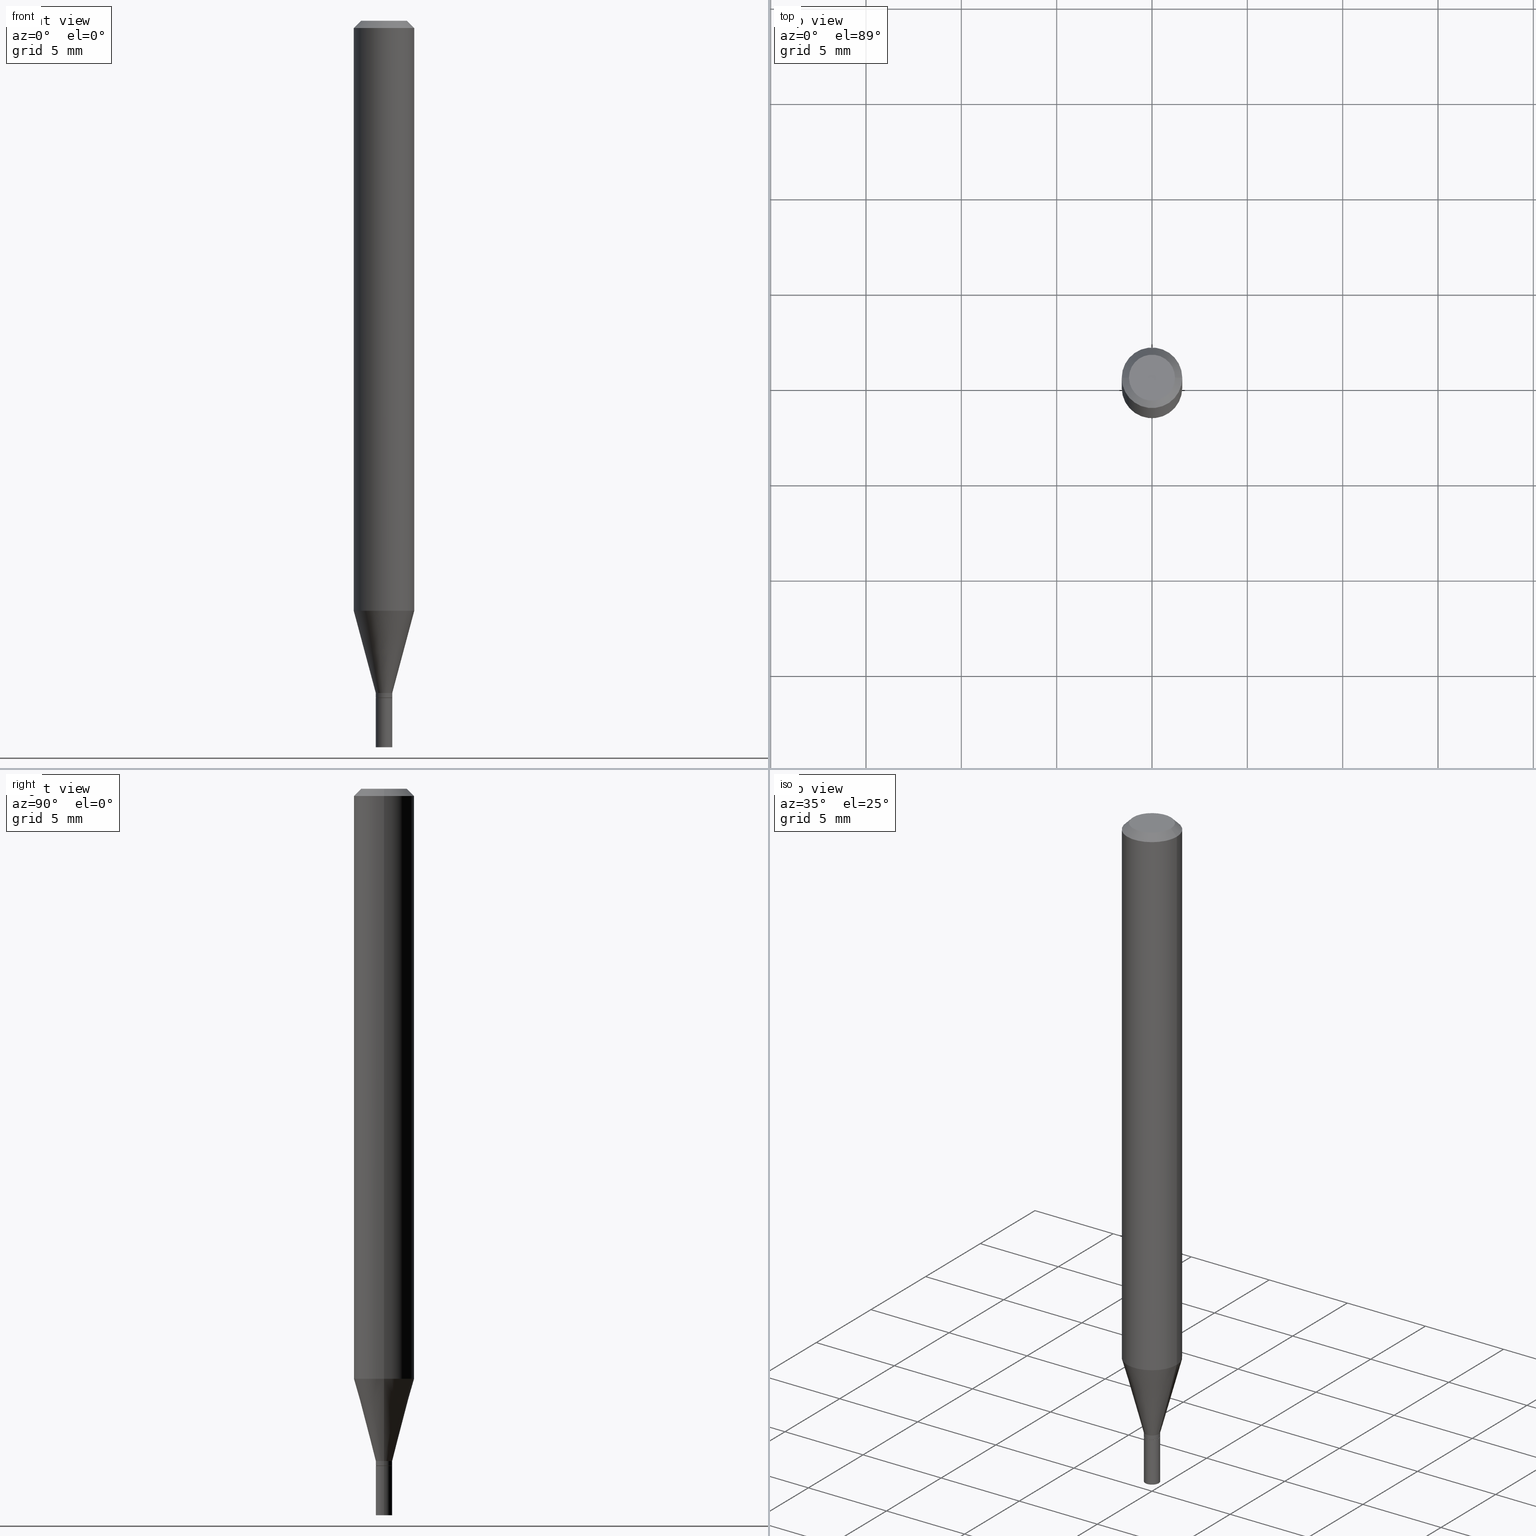
[diagram: canonical four-view strip — front | top / right | iso, engineering-drawing reading convention]
A machine part, canonical four-view strip (front | top / right | iso — engineering-drawing reading convention). The complete STEP part file that produces these views, byte-faithful:
ISO-10303-21;
HEADER;
FILE_DESCRIPTION (( 'STEP AP203' ),
    '1' );
FILE_NAME ('01185.STEP',
    '2024-03-19T23:46:55',
    ( '' ),
    ( '' ),
    'SwSTEP 2.0',
    'SolidWorks 2023',
    '' );
FILE_SCHEMA (( 'CONFIG_CONTROL_DESIGN' ));
ENDSEC;

DATA;
#1 = CARTESIAN_POINT ( 'NONE',  ( -0.01699999999999992142, -4.267294085031657797E-15, -1.388000000000000123 ) ) ;
#2 = CIRCLE ( 'NONE', #345, 0.01700000000000000122 ) ;
#3 = EDGE_CURVE ( 'NONE', #164, #212, #240, .T. ) ;
#4 = COORDINATED_UNIVERSAL_TIME_OFFSET ( 5, 0, .BEHIND. ) ;
#5 = DIRECTION ( 'NONE',  ( -2.445468806185136597E-29, 3.491481338843145583E-15, 1.000000000000000000 ) ) ;
#6 = COORDINATED_UNIVERSAL_TIME_OFFSET ( 5, 0, .BEHIND. ) ;
#7 = CARTESIAN_POINT ( 'NONE',  ( 0.01700000000000000122, -5.355932373785385153E-15, -1.500000000000000222 ) ) ;
#8 = PERSON_AND_ORGANIZATION_ROLE ( 'design_supplier' ) ;
#9 = DIRECTION ( 'NONE',  ( 1.000000000000000000, -6.982962677686265922E-15, 4.876176775795935793E-29 ) ) ;
#10 = CARTESIAN_POINT ( 'NONE',  ( 3.316907271900976096E-16, 0.04749999999999999362, -4.273281759770383169E-16 ) ) ;
#11 = APPLICATION_CONTEXT ( 'configuration controlled 3d designs of mechanical parts and assemblies' ) ;
#12 = CYLINDRICAL_SURFACE ( 'NONE', #404, 0.01700000000000000122 ) ;
#13 = ORIENTED_EDGE ( 'NONE', *, *, #336, .T. ) ;
#14 = DIRECTION ( 'NONE',  ( -2.445468806185136597E-29, 3.491481338843145583E-15, 1.000000000000000000 ) ) ;
#15 = EDGE_LOOP ( 'NONE', ( #101, #312, #244, #458 ) ) ;
#16 = EDGE_CURVE ( 'NONE', #374, #454, #460, .T. ) ;
#17 = CONICAL_SURFACE ( 'NONE', #364, 0.01650000000000000078, 0.7853981633974718157 ) ;
#18 = EDGE_CURVE ( 'NONE', #454, #374, #49, .T. ) ;
#19 = CIRCLE ( 'NONE', #50, 0.01650000000000000078 ) ;
#20 = CARTESIAN_POINT ( 'NONE',  ( 3.418765391046821599E-29, -4.881090911702718827E-15, -1.398000000000000131 ) ) ;
#21 = EDGE_LOOP ( 'NONE', ( #146, #314 ) ) ;
#22 = DIRECTION ( 'NONE',  ( -2.445468806185136597E-29, 3.491481338843145583E-15, 1.000000000000000000 ) ) ;
#23 = EDGE_LOOP ( 'NONE', ( #73, #410, #174, #103 ) ) ;
#24 = ADVANCED_FACE ( 'NONE', ( #432 ), #110, .F. ) ;
#25 = AXIS2_PLACEMENT_3D ( 'NONE', #443, #362, #292 ) ;
#26 = FACE_OUTER_BOUND ( 'NONE', #402, .T. ) ;
#27 = VECTOR ( 'NONE', #295, 39.37007874015747433 ) ;
#28 = CARTESIAN_POINT ( 'NONE',  ( 1.278896122067429216E-44, -1.825924719719875646E-30, -5.229656247639779395E-16 ) ) ;
#29 = CARTESIAN_POINT ( 'NONE',  ( 0.000000000000000000, 0.000000000000000000, 0.000000000000000000 ) ) ;
#30 = ORIENTED_EDGE ( 'NONE', *, *, #210, .T. ) ;
#31 = LINE ( 'NONE', #64, #461 ) ;
#32 = ORIENTED_EDGE ( 'NONE', *, *, #63, .T. ) ;
#33 = EDGE_CURVE ( 'NONE', #55, #164, #359, .T. ) ;
#34 = CARTESIAN_POINT ( 'NONE',  ( 3.394310702984970054E-29, -4.846176098314285600E-15, -1.388000000000000123 ) ) ;
#35 = DIRECTION ( 'NONE',  ( 1.000000000000000000, -6.982962677686267499E-15, 4.852736867747366768E-29 ) ) ;
#36 = VECTOR ( 'NONE', #337, 39.37007874015748143 ) ;
#37 = PERSON_AND_ORGANIZATION_ROLE ( 'creator' ) ;
#38 = VERTEX_POINT ( 'NONE', #123 ) ;
#39 = PERSON_AND_ORGANIZATION ( #52, #331 ) ;
#40 = CARTESIAN_POINT ( 'NONE',  ( 3.418765391046821599E-29, -4.881090911702718827E-15, -1.398000000000000131 ) ) ;
#41 = FACE_OUTER_BOUND ( 'NONE', #23, .T. ) ;
#42 = ADVANCED_FACE ( 'NONE', ( #288 ), #78, .F. ) ;
#43 = COORDINATED_UNIVERSAL_TIME_OFFSET ( 5, 0, .BEHIND. ) ;
#44 = CARTESIAN_POINT ( 'NONE',  ( 0.01700000000000000122, -1.187103655206665568E-16, 8.289500518853091759E-31 ) ) ;
#45 = DATE_TIME_ROLE ( 'creation_date' ) ;
#46 = CARTESIAN_POINT ( 'NONE',  ( -0.01650000000000000078, -4.761202133128191386E-15, -1.398000000000000131 ) ) ;
#47 = EDGE_CURVE ( 'NONE', #454, #166, #356, .T. ) ;
#48 = DIRECTION ( 'NONE',  ( -1.000000000000000000, 6.982962677686266711E-15, 0.000000000000000000 ) ) ;
#49 = CIRCLE ( 'NONE', #179, 0.04749999999999999362 ) ;
#50 = AXIS2_PLACEMENT_3D ( 'NONE', #20, #198, #161 ) ;
#51 = CARTESIAN_POINT ( 'NONE',  ( 0.01700000000000000122, -4.999801277223385014E-15, -1.398000000000000131 ) ) ;
#52 = PERSON ( 'UNSPECIFIED', 'UNSPECIFIED', 'UNSPECIFIED', ('UNSPECIFIED'), ('UNSPECIFIED'), ('UNSPECIFIED') ) ;
#53 = ORIENTED_EDGE ( 'NONE', *, *, #18, .F. ) ;
#54 = CARTESIAN_POINT ( 'NONE',  ( -0.06250000000000000000, 3.840629472727444916E-16, -0.01499999999999999944 ) ) ;
#55 = VERTEX_POINT ( 'NONE', #46 ) ;
#56 = EDGE_CURVE ( 'NONE', #108, #277, #414, .T. ) ;
#57 = CARTESIAN_POINT ( 'NONE',  ( -0.01699999999999992142, -4.725383833235069250E-15, -1.388000000000000123 ) ) ;
#58 = CIRCLE ( 'NONE', #278, 0.01700000000000000122 ) ;
#59 = CC_DESIGN_APPROVAL ( #370, ( #340 ) ) ;
#60 = DIRECTION ( 'NONE',  ( 1.000000000000000000, -6.982962677686265922E-15, 4.876176775795935793E-29 ) ) ;
#61 = ADVANCED_FACE ( 'NONE', ( #41 ), #17, .T. ) ;
#62 = ORIENTED_EDGE ( 'NONE', *, *, #56, .T. ) ;
#63 = EDGE_CURVE ( 'NONE', #131, #277, #252, .T. ) ;
#64 = CARTESIAN_POINT ( 'NONE',  ( -0.06250000000000000000, 4.440892098500626162E-16, -3.074334431409316114E-30 ) ) ;
#65 = ORIENTED_EDGE ( 'NONE', *, *, #162, .T. ) ;
#66 = AXIS2_PLACEMENT_3D ( 'NONE', #215, #429, #138 ) ;
#67 = DIRECTION ( 'NONE',  ( -2.445468806185136597E-29, 3.491481338843145583E-15, 1.000000000000000000 ) ) ;
#68 = ORIENTED_EDGE ( 'NONE', *, *, #265, .F. ) ;
#69 = LINE ( 'NONE', #242, #307 ) ;
#70 = EDGE_LOOP ( 'NONE', ( #269, #209 ) ) ;
#71 = CC_DESIGN_DATE_AND_TIME_ASSIGNMENT ( #355, #190, ( #316 ) ) ;
#72 = DIRECTION ( 'NONE',  ( -2.445468806185136597E-29, 3.491481338843145583E-15, 1.000000000000000000 ) ) ;
#73 = ORIENTED_EDGE ( 'NONE', *, *, #33, .F. ) ;
#74 = CARTESIAN_POINT ( 'NONE',  ( 1.187103655207007243E-16, 0.01699999999999511971, -1.398000000000000131 ) ) ;
#75 = AXIS2_PLACEMENT_3D ( 'NONE', #449, #448, #301 ) ;
#76 = SECURITY_CLASSIFICATION_LEVEL ( 'unclassified' ) ;
#77 = DIRECTION ( 'NONE',  ( -1.000000000000000000, 6.982962677686266711E-15, 0.000000000000000000 ) ) ;
#78 = PLANE ( 'NONE',  #167 ) ;
#79 = APPROVAL ( #221, 'UNSPECIFIED' ) ;
#80 = FACE_OUTER_BOUND ( 'NONE', #384, .T. ) ;
#81 = AXIS2_PLACEMENT_3D ( 'NONE', #115, #117, #226 ) ;
#82 = LOCAL_TIME ( 19, 46, 55.00000000000000000, #6 ) ;
#83 = SHAPE_DEFINITION_REPRESENTATION ( #412, #427 ) ;
#84 = DIRECTION ( 'NONE',  ( 1.000000000000000000, -6.982962677686266711E-15, 4.876176775795935793E-29 ) ) ;
#85 = EDGE_CURVE ( 'NONE', #131, #170, #58, .T. ) ;
#86 = FACE_OUTER_BOUND ( 'NONE', #15, .T. ) ;
#87 = DIRECTION ( 'NONE',  ( -0.7071067811865598962, 2.468850131082386434E-15, -0.7071067811865351382 ) ) ;
#88 = ORIENTED_EDGE ( 'NONE', *, *, #430, .F. ) ;
#89 = AXIS2_PLACEMENT_3D ( 'NONE', #28, #378, #35 ) ;
#90 = AXIS2_PLACEMENT_3D ( 'NONE', #444, #261, #401 ) ;
#91 = LINE ( 'NONE', #54, #382 ) ;
#92 = FACE_OUTER_BOUND ( 'NONE', #21, .T. ) ;
#93 = DESIGN_CONTEXT ( 'detailed design', #11, 'design' ) ;
#94 = DIRECTION ( 'NONE',  ( -2.445468806185136597E-29, 3.491481338843145583E-15, 1.000000000000000000 ) ) ;
#95 = CIRCLE ( 'NONE', #75, 0.06250000000000000000 ) ;
#96 = APPROVAL_PERSON_ORGANIZATION ( #116, #297, #466 ) ;
#97 = DIRECTION ( 'NONE',  ( 1.000000000000000000, -6.982962677686243834E-15, 0.000000000000000000 ) ) ;
#98 = PRODUCT ( '01185', '01185', '', ( #100 ) ) ;
#99 = CC_DESIGN_PERSON_AND_ORGANIZATION_ASSIGNMENT ( #284, #319, ( #340 ) ) ;
#100 = MECHANICAL_CONTEXT ( 'NONE', #199, 'mechanical' ) ;
#101 = ORIENTED_EDGE ( 'NONE', *, *, #85, .T. ) ;
#102 = FACE_OUTER_BOUND ( 'NONE', #353, .T. ) ;
#103 = ORIENTED_EDGE ( 'NONE', *, *, #3, .F. ) ;
#104 = LINE ( 'NONE', #180, #365 ) ;
#105 = CONICAL_SURFACE ( 'NONE', #434, 0.06250000000000000000, 0.7853981633974658205 ) ;
#106 = ORIENTED_EDGE ( 'NONE', *, *, #47, .T. ) ;
#107 = ADVANCED_FACE ( 'NONE', ( #193 ), #433, .T. ) ;
#108 = VERTEX_POINT ( 'NONE', #154 ) ;
#109 = FACE_OUTER_BOUND ( 'NONE', #197, .T. ) ;
#110 = PLANE ( 'NONE',  #350 ) ;
#111 = ADVANCED_FACE ( 'NONE', ( #438 ), #395, .T. ) ;
#112 = APPROVAL_DATE_TIME ( #249, #297 ) ;
#113 = CARTESIAN_POINT ( 'NONE',  ( 0.000000000000000000, 0.000000000000000000, 0.000000000000000000 ) ) ;
#114 = PERSON_AND_ORGANIZATION_ROLE ( 'classification_officer' ) ;
#115 = CARTESIAN_POINT ( 'NONE',  ( 3.418765391046821599E-29, -4.881090911702718827E-15, -1.398000000000000131 ) ) ;
#116 = PERSON_AND_ORGANIZATION ( #52, #331 ) ;
#117 = DIRECTION ( 'NONE',  ( -2.445468806185136597E-29, 3.491481338843145583E-15, 1.000000000000000000 ) ) ;
#118 = PERSON_AND_ORGANIZATION ( #52, #331 ) ;
#119 = FACE_OUTER_BOUND ( 'NONE', #281, .T. ) ;
#120 = PRODUCT_RELATED_PRODUCT_CATEGORY ( 'detail', '', ( #98 ) ) ;
#121 = AXIS2_PLACEMENT_3D ( 'NONE', #330, #399, #436 ) ;
#122 = CC_DESIGN_APPROVAL ( #297, ( #316 ) ) ;
#123 = CARTESIAN_POINT ( 'NONE',  ( -0.06250000000000000000, -1.708743673530416389E-15, -0.01499999999999999944 ) ) ;
#124 = DIRECTION ( 'NONE',  ( 1.000000000000000000, -6.982962677686270655E-15, 0.000000000000000000 ) ) ;
#125 = ORIENTED_EDGE ( 'NONE', *, *, #216, .T. ) ;
#126 = CARTESIAN_POINT ( 'NONE',  ( 0.01699999999999992142, -4.964886463834951787E-15, -1.388000000000000123 ) ) ;
#127 = ORIENTED_EDGE ( 'NONE', *, *, #85, .F. ) ;
#128 = AXIS2_PLACEMENT_3D ( 'NONE', #34, #379, #422 ) ;
#129 = CC_DESIGN_PERSON_AND_ORGANIZATION_ASSIGNMENT ( #328, #114, ( #316 ) ) ;
#130 = DIRECTION ( 'NONE',  ( -2.445468806185136597E-29, 3.491481338843145583E-15, 1.000000000000000000 ) ) ;
#131 = VERTEX_POINT ( 'NONE', #7 ) ;
#132 = PLANE ( 'NONE',  #375 ) ;
#133 = ORIENTED_EDGE ( 'NONE', *, *, #423, .F. ) ;
#134 = CYLINDRICAL_SURFACE ( 'NONE', #234, 0.01699999999999992142 ) ;
#135 = ORIENTED_EDGE ( 'NONE', *, *, #139, .T. ) ;
#136 = CC_DESIGN_APPROVAL ( #79, ( #189 ) ) ;
#137 = DIRECTION ( 'NONE',  ( -2.445468806185136597E-29, 3.491481338843145583E-15, 1.000000000000000000 ) ) ;
#138 = DIRECTION ( 'NONE',  ( 1.000000000000000000, -6.982962677686249356E-15, 0.000000000000000000 ) ) ;
#139 = EDGE_CURVE ( 'NONE', #38, #166, #388, .T. ) ;
#140 = ORIENTED_EDGE ( 'NONE', *, *, #430, .T. ) ;
#141 = ADVANCED_FACE ( 'NONE', ( #80 ), #150, .T. ) ;
#142 = PERSON_AND_ORGANIZATION ( #52, #331 ) ;
#143 = EDGE_LOOP ( 'NONE', ( #274, #424, #372, #135 ) ) ;
#144 = CARTESIAN_POINT ( 'NONE',  ( 0.04749999999999999362, -4.035134999187587991E-16, -5.229656247639753758E-16 ) ) ;
#145 = APPROVAL_PERSON_ORGANIZATION ( #118, #370, #185 ) ;
#146 = ORIENTED_EDGE ( 'NONE', *, *, #289, .F. ) ;
#147 = CYLINDRICAL_SURFACE ( 'NONE', #188, 0.06250000000000000000 ) ;
#148 = VERTEX_POINT ( 'NONE', #1 ) ;
#149 = APPROVAL_DATE_TIME ( #437, #79 ) ;
#150 = CYLINDRICAL_SURFACE ( 'NONE', #453, 0.06250000000000000000 ) ;
#151 = APPROVAL_STATUS ( 'not_yet_approved' ) ;
#152 = CARTESIAN_POINT ( 'NONE',  ( 0.01699999999999992142, -4.964886463834951787E-15, -1.388000000000000123 ) ) ;
#153 = CONICAL_SURFACE ( 'NONE', #263, 0.01699999999999992142, 0.2617993877991500740 ) ;
#154 = CARTESIAN_POINT ( 'NONE',  ( -0.01700000000000000122, -4.938364194904501363E-15, -1.398000000000000131 ) ) ;
#155 = ADVANCED_FACE ( 'NONE', ( #86 ), #156, .T. ) ;
#156 = CYLINDRICAL_SURFACE ( 'NONE', #25, 0.01700000000000000122 ) ;
#157 = DIRECTION ( 'NONE',  ( -1.000000000000000000, 6.982962677686265922E-15, -4.876176775795935793E-29 ) ) ;
#158 = VECTOR ( 'NONE', #187, 39.37007874015748143 ) ;
#159 = VECTOR ( 'NONE', #332, 39.37007874015747433 ) ;
#160 = CC_DESIGN_SECURITY_CLASSIFICATION ( #316, ( #340 ) ) ;
#161 = DIRECTION ( 'NONE',  ( 1.000000000000000000, -6.982962677686243834E-15, 0.000000000000000000 ) ) ;
#162 = EDGE_CURVE ( 'NONE', #212, #214, #186, .T. ) ;
#163 = CARTESIAN_POINT ( 'NONE',  ( 0.000000000000000000, 0.000000000000000000, 0.000000000000000000 ) ) ;
#164 = VERTEX_POINT ( 'NONE', #439 ) ;
#165 = DIRECTION ( 'NONE',  ( 1.000000000000000000, -6.982962677686267499E-15, 4.876176775795935793E-29 ) ) ;
#166 = VERTEX_POINT ( 'NONE', #391 ) ;
#167 = AXIS2_PLACEMENT_3D ( 'NONE', #290, #322, #9 ) ;
#168 = AXIS2_PLACEMENT_3D ( 'NONE', #29, #457, #304 ) ;
#169 = DIRECTION ( 'NONE',  ( 1.000000000000000000, -6.982962677686266711E-15, 4.876176775795936353E-29 ) ) ;
#170 = VERTEX_POINT ( 'NONE', #184 ) ;
#171 = LINE ( 'NONE', #57, #159 ) ;
#172 = ADVANCED_FACE ( 'NONE', ( #119 ), #105, .T. ) ;
#173 = EDGE_LOOP ( 'NONE', ( #127, #206 ) ) ;
#174 = ORIENTED_EDGE ( 'NONE', *, *, #390, .T. ) ;
#175 = PERSON_AND_ORGANIZATION ( #52, #331 ) ;
#176 = EDGE_LOOP ( 'NONE', ( #413, #62 ) ) ;
#177 =( NAMED_UNIT ( * ) SI_UNIT ( $, .STERADIAN. ) SOLID_ANGLE_UNIT ( ) );
#178 = ORIENTED_EDGE ( 'NONE', *, *, #245, .T. ) ;
#179 = AXIS2_PLACEMENT_3D ( 'NONE', #318, #463, #276 ) ;
#180 = CARTESIAN_POINT ( 'NONE',  ( -0.01699999999999992142, 1.207922650792164733E-16, -8.362189653433301602E-31 ) ) ;
#181 = CIRCLE ( 'NONE', #128, 0.01699999999999992142 ) ;
#182 = ORIENTED_EDGE ( 'NONE', *, *, #423, .T. ) ;
#183 = EDGE_CURVE ( 'NONE', #214, #346, #218, .T. ) ;
#184 = CARTESIAN_POINT ( 'NONE',  ( -0.01700000000000000122, -4.938364194904501363E-15, -1.500000000000000222 ) ) ;
#185 = APPROVAL_ROLE ( '' ) ;
#186 = LINE ( 'NONE', #250, #315 ) ;
#187 = DIRECTION ( 'NONE',  ( -0.7071067811865642261, 7.493145998870414114E-15, 0.7071067811865309194 ) ) ;
#188 = AXIS2_PLACEMENT_3D ( 'NONE', #282, #137, #347 ) ;
#189 = PRODUCT_DEFINITION ( 'UNKNOWN', '', #340, #93 ) ;
#190 = DATE_TIME_ROLE ( 'classification_date' ) ;
#191 = DIRECTION ( 'NONE',  ( -2.445468806185136877E-29, 3.491481338843145188E-15, 1.000000000000000000 ) ) ;
#192 = APPROVAL_STATUS ( 'not_yet_approved' ) ;
#193 = FACE_OUTER_BOUND ( 'NONE', #339, .T. ) ;
#194 = CARTESIAN_POINT ( 'NONE',  ( 0.000000000000000000, 0.000000000000000000, 0.000000000000000000 ) ) ;
#195 = AXIS2_PLACEMENT_3D ( 'NONE', #10, #232, #260 ) ;
#196 = FACE_OUTER_BOUND ( 'NONE', #267, .T. ) ;
#197 = EDGE_LOOP ( 'NONE', ( #237, #178, #305, #380 ) ) ;
#198 = DIRECTION ( 'NONE',  ( -2.445468806185136597E-29, 3.491481338843145583E-15, 1.000000000000000000 ) ) ;
#199 = APPLICATION_CONTEXT ( 'configuration controlled 3d designs of mechanical parts and assemblies' ) ;
#200 = PLANE ( 'NONE',  #195 ) ;
#201 = ORIENTED_EDGE ( 'NONE', *, *, #329, .F. ) ;
#202 = VECTOR ( 'NONE', #191, 39.37007874015748143 ) ;
#203 = CIRCLE ( 'NONE', #447, 0.06250000000000000000 ) ;
#204 = EDGE_CURVE ( 'NONE', #170, #131, #229, .T. ) ;
#205 = CARTESIAN_POINT ( 'NONE',  ( -0.04749999999999999362, 3.578768372314202124E-16, -5.229656247639803061E-16 ) ) ;
#206 = ORIENTED_EDGE ( 'NONE', *, *, #204, .F. ) ;
#207 = DIRECTION ( 'NONE',  ( -2.445468806185136877E-29, 3.491481338843145188E-15, 1.000000000000000000 ) ) ;
#208 = PERSON_AND_ORGANIZATION_ROLE ( 'design_owner' ) ;
#209 = ORIENTED_EDGE ( 'NONE', *, *, #18, .T. ) ;
#210 = EDGE_CURVE ( 'NONE', #452, #346, #203, .T. ) ;
#211 = VECTOR ( 'NONE', #236, 39.37007874015748143 ) ;
#212 = VERTEX_POINT ( 'NONE', #445 ) ;
#213 =( NAMED_UNIT ( * ) PLANE_ANGLE_UNIT ( ) SI_UNIT ( $, .RADIAN. ) );
#214 = VERTEX_POINT ( 'NONE', #126 ) ;
#215 = CARTESIAN_POINT ( 'NONE',  ( 3.417542656643729358E-29, -4.879345171033297323E-15, -1.397500000000000409 ) ) ;
#216 = EDGE_CURVE ( 'NONE', #346, #166, #369, .T. ) ;
#217 = DIRECTION ( 'NONE',  ( 2.438088387897960049E-29, -3.491481338843145188E-15, -1.000000000000000000 ) ) ;
#218 = LINE ( 'NONE', #152, #27 ) ;
#219 = CARTESIAN_POINT ( 'NONE',  ( 3.418765391046821599E-29, -4.881090911702718827E-15, -1.398000000000000131 ) ) ;
#220 = ADVANCED_FACE ( 'NONE', ( #333 ), #134, .T. ) ;
#221 = APPROVAL_STATUS ( 'not_yet_approved' ) ;
#222 = MANIFOLD_SOLID_BREP ( 'Body-Move/Copy2[1]', #425 ) ;
#223 = AXIS2_PLACEMENT_3D ( 'NONE', #40, #325, #354 ) ;
#224 = DIRECTION ( 'NONE',  ( -2.445468806185136597E-29, 3.491481338843145583E-15, 1.000000000000000000 ) ) ;
#225 = AXIS2_PLACEMENT_3D ( 'NONE', #406, #415, #48 ) ;
#226 = DIRECTION ( 'NONE',  ( 1.000000000000000000, -6.982962677686243834E-15, 0.000000000000000000 ) ) ;
#227 = DIRECTION ( 'NONE',  ( -2.445468806185136877E-29, 3.491481338843145188E-15, 1.000000000000000000 ) ) ;
#228 = DIRECTION ( 'NONE',  ( -2.445468806185136597E-29, 3.491481338843145583E-15, 1.000000000000000000 ) ) ;
#229 = CIRCLE ( 'NONE', #90, 0.01700000000000000122 ) ;
#230 = LOCAL_TIME ( 19, 46, 55.00000000000000000, #291 ) ;
#231 = LINE ( 'NONE', #268, #36 ) ;
#232 = DIRECTION ( 'NONE',  ( 2.438088387897960049E-29, -3.491481338843145188E-15, -1.000000000000000000 ) ) ;
#233 = DIRECTION ( 'NONE',  ( -2.438088387897960049E-29, 3.491481338843145188E-15, 1.000000000000000000 ) ) ;
#234 = AXIS2_PLACEMENT_3D ( 'NONE', #194, #94, #169 ) ;
#235 = CIRCLE ( 'NONE', #248, 0.01650000000000000078 ) ;
#236 = DIRECTION ( 'NONE',  ( -2.445468806185136877E-29, 3.491481338843145188E-15, 1.000000000000000000 ) ) ;
#237 = ORIENTED_EDGE ( 'NONE', *, *, #408, .T. ) ;
#238 = CARTESIAN_POINT ( 'NONE',  ( 3.394310702984970054E-29, -4.846176098314285600E-15, -1.388000000000000123 ) ) ;
#239 = ORIENTED_EDGE ( 'NONE', *, *, #390, .F. ) ;
#240 = CIRCLE ( 'NONE', #66, 0.01699999999999992489 ) ;
#241 = CONICAL_SURFACE ( 'NONE', #324, 0.01699999999999992142, 0.2617993877991500740 ) ;
#242 = CARTESIAN_POINT ( 'NONE',  ( 0.01650000000000000078, -4.996309795884541218E-15, -1.398000000000000131 ) ) ;
#243 = ORIENTED_EDGE ( 'NONE', *, *, #204, .T. ) ;
#244 = ORIENTED_EDGE ( 'NONE', *, *, #400, .F. ) ;
#245 = EDGE_CURVE ( 'NONE', #148, #452, #171, .T. ) ;
#246 = PERSON_AND_ORGANIZATION ( #52, #331 ) ;
#247 = EDGE_LOOP ( 'NONE', ( #133, #386, #65, #88 ) ) ;
#248 = AXIS2_PLACEMENT_3D ( 'NONE', #367, #228, #97 ) ;
#249 = DATE_AND_TIME ( #326, #442 ) ;
#250 = CARTESIAN_POINT ( 'NONE',  ( 0.01699999999999992142, -1.187103655206659898E-16, 8.289500518853053223E-31 ) ) ;
#251 = CARTESIAN_POINT ( 'NONE',  ( 0.06250000000000000000, -4.811533449433679005E-16, -0.01499999999999999944 ) ) ;
#252 = LINE ( 'NONE', #44, #202 ) ;
#253 = CC_DESIGN_PERSON_AND_ORGANIZATION_ASSIGNMENT ( #175, #208, ( #98 ) ) ;
#254 = DATE_AND_TIME ( #441, #82 ) ;
#255 = VECTOR ( 'NONE', #393, 39.37007874015748143 ) ;
#256 = CARTESIAN_POINT ( 'NONE',  ( 3.668203209277705088E-31, -5.237222008264718399E-17, -0.01499999999999999944 ) ) ;
#257 = ADVANCED_FACE ( 'NONE', ( #298 ), #200, .F. ) ;
#258 = DIRECTION ( 'NONE',  ( 1.000000000000000000, -6.982962677686274599E-15, 0.000000000000000000 ) ) ;
#259 = ADVANCED_FACE ( 'NONE', ( #299 ), #293, .T. ) ;
#260 = DIRECTION ( 'NONE',  ( -1.000000000000000000, 6.982962677686265922E-15, -4.876176775795935793E-29 ) ) ;
#261 = DIRECTION ( 'NONE',  ( -2.445468806185136597E-29, 3.491481338843145583E-15, 1.000000000000000000 ) ) ;
#262 = ORIENTED_EDGE ( 'NONE', *, *, #289, .T. ) ;
#263 = AXIS2_PLACEMENT_3D ( 'NONE', #280, #275, #309 ) ;
#264 = CARTESIAN_POINT ( 'NONE',  ( 0.06250000000000000000, -4.689728714033702207E-15, -1.218191688255616301 ) ) ;
#265 = EDGE_CURVE ( 'NONE', #170, #108, #231, .T. ) ;
#266 = CARTESIAN_POINT ( 'NONE',  ( 2.979049773583118169E-29, -4.253293546678310537E-15, -1.218191688255616301 ) ) ;
#267 = EDGE_LOOP ( 'NONE', ( #68, #243, #32, #335 ) ) ;
#268 = CARTESIAN_POINT ( 'NONE',  ( -0.01700000000000000122, 1.207922650792170403E-16, -8.362189653433340137E-31 ) ) ;
#269 = ORIENTED_EDGE ( 'NONE', *, *, #16, .T. ) ;
#270 = CLOSED_SHELL ( 'NONE', ( #107, #111, #172, #141, #403, #405, #450, #259, #257, #361, #61, #220 ) ) ;
#271 =( GEOMETRIC_REPRESENTATION_CONTEXT ( 3 ) GLOBAL_UNCERTAINTY_ASSIGNED_CONTEXT ( ( #308 ) ) GLOBAL_UNIT_ASSIGNED_CONTEXT ( ( #431, #213, #177 ) ) REPRESENTATION_CONTEXT ( 'NONE', 'WORKASPACE' ) );
#272 = EDGE_CURVE ( 'NONE', #374, #38, #91, .T. ) ;
#273 = DIRECTION ( 'NONE',  ( -2.445468806185136597E-29, 3.491481338843145583E-15, 1.000000000000000000 ) ) ;
#274 = ORIENTED_EDGE ( 'NONE', *, *, #47, .F. ) ;
#275 = DIRECTION ( 'NONE',  ( -2.445468806185136597E-29, 3.491481338843145583E-15, 1.000000000000000000 ) ) ;
#276 = DIRECTION ( 'NONE',  ( 1.000000000000000000, -6.982962677686267499E-15, 4.852736867747366768E-29 ) ) ;
#277 = VERTEX_POINT ( 'NONE', #51 ) ;
#278 = AXIS2_PLACEMENT_3D ( 'NONE', #327, #465, #258 ) ;
#279 = LOCAL_TIME ( 19, 46, 55.00000000000000000, #4 ) ;
#280 = CARTESIAN_POINT ( 'NONE',  ( 3.394310702984970054E-29, -4.846176098314285600E-15, -1.388000000000000123 ) ) ;
#281 = EDGE_LOOP ( 'NONE', ( #53, #106, #310, #387 ) ) ;
#282 = CARTESIAN_POINT ( 'NONE',  ( 0.000000000000000000, 0.000000000000000000, 0.000000000000000000 ) ) ;
#283 = ORIENTED_EDGE ( 'NONE', *, *, #139, .F. ) ;
#284 = PERSON_AND_ORGANIZATION ( #52, #331 ) ;
#285 = DIRECTION ( 'NONE',  ( 1.000000000000000000, -6.982962677686243834E-15, 0.000000000000000000 ) ) ;
#286 = AXIS2_PLACEMENT_3D ( 'NONE', #341, #22, #451 ) ;
#287 = CALENDAR_DATE ( 2024, 19, 3 ) ;
#288 = FACE_OUTER_BOUND ( 'NONE', #173, .T. ) ;
#289 = EDGE_CURVE ( 'NONE', #348, #55, #235, .T. ) ;
#290 = CARTESIAN_POINT ( 'NONE',  ( 3.584916967085606921E-29, -5.356492647442320375E-15, -1.500000000000000222 ) ) ;
#291 = COORDINATED_UNIVERSAL_TIME_OFFSET ( 5, 0, .BEHIND. ) ;
#292 = DIRECTION ( 'NONE',  ( 1.000000000000000000, -6.982962677686267499E-15, 4.876176775795935793E-29 ) ) ;
#293 = CONICAL_SURFACE ( 'NONE', #225, 0.06250000000000000000, 0.7853981633974658205 ) ;
#294 = DIRECTION ( 'NONE',  ( -2.445468806185136597E-29, 3.491481338843145583E-15, 1.000000000000000000 ) ) ;
#295 = DIRECTION ( 'NONE',  ( 0.2588190451025213501, 1.565188264969621968E-15, 0.9659258262890682012 ) ) ;
#296 = CARTESIAN_POINT ( 'NONE',  ( 2.979049773583118169E-29, -4.253293546678310537E-15, -1.218191688255616301 ) ) ;
#297 = APPROVAL ( #192, 'UNSPECIFIED' ) ;
#298 = FACE_OUTER_BOUND ( 'NONE', #70, .T. ) ;
#299 = FACE_OUTER_BOUND ( 'NONE', #143, .T. ) ;
#300 = ORIENTED_EDGE ( 'NONE', *, *, #162, .F. ) ;
#301 = DIRECTION ( 'NONE',  ( 1.000000000000000000, -6.982962677686266711E-15, 0.000000000000000000 ) ) ;
#302 = ORIENTED_EDGE ( 'NONE', *, *, #183, .T. ) ;
#303 = EDGE_CURVE ( 'NONE', #55, #348, #19, .T. ) ;
#304 = DIRECTION ( 'NONE',  ( 1.000000000000000000, 0.000000000000000000, 0.000000000000000000 ) ) ;
#305 = ORIENTED_EDGE ( 'NONE', *, *, #336, .F. ) ;
#306 = ADVANCED_FACE ( 'NONE', ( #196 ), #12, .T. ) ;
#307 = VECTOR ( 'NONE', #383, 39.37007874015748143 ) ;
#308 = UNCERTAINTY_MEASURE_WITH_UNIT (LENGTH_MEASURE( 1.000000000000000082E-05 ), #431, 'distance_accuracy_value', 'NONE');
#309 = DIRECTION ( 'NONE',  ( 1.000000000000000000, -6.982962677686250933E-15, 0.000000000000000000 ) ) ;
#310 = ORIENTED_EDGE ( 'NONE', *, *, #329, .T. ) ;
#311 = APPLICATION_PROTOCOL_DEFINITION ( 'international standard', 'config_control_design', 1994, #11 ) ;
#312 = ORIENTED_EDGE ( 'NONE', *, *, #265, .T. ) ;
#313 = CARTESIAN_POINT ( 'NONE',  ( 3.394310702984970054E-29, -4.846176098314285600E-15, -1.388000000000000123 ) ) ;
#314 = ORIENTED_EDGE ( 'NONE', *, *, #303, .F. ) ;
#315 = VECTOR ( 'NONE', #227, 39.37007874015748143 ) ;
#316 = SECURITY_CLASSIFICATION ( '', '', #76 ) ;
#317 = LENGTH_MEASURE_WITH_UNIT ( LENGTH_MEASURE( 0.02539999999999999897 ), #385 );
#318 = CARTESIAN_POINT ( 'NONE',  ( 1.278896122067429216E-44, -1.825924719719875646E-30, -5.229656247639779395E-16 ) ) ;
#319 = PERSON_AND_ORGANIZATION_ROLE ( 'creator' ) ;
#320 = DIRECTION ( 'NONE',  ( 1.000000000000000000, -6.982962677686266711E-15, 0.000000000000000000 ) ) ;
#321 = APPROVAL_ROLE ( '' ) ;
#322 = DIRECTION ( 'NONE',  ( -2.438088387897960049E-29, 3.491481338843145188E-15, 1.000000000000000000 ) ) ;
#323 = CC_DESIGN_DATE_AND_TIME_ASSIGNMENT ( #254, #45, ( #189 ) ) ;
#324 = AXIS2_PLACEMENT_3D ( 'NONE', #238, #67, #462 ) ;
#325 = DIRECTION ( 'NONE',  ( -2.445468806185136597E-29, 3.491481338843145583E-15, 1.000000000000000000 ) ) ;
#326 = CALENDAR_DATE ( 2024, 19, 3 ) ;
#327 = CARTESIAN_POINT ( 'NONE',  ( 3.668203209277704895E-29, -5.237222008264718177E-15, -1.500000000000000222 ) ) ;
#328 = PERSON_AND_ORGANIZATION ( #52, #331 ) ;
#329 = EDGE_CURVE ( 'NONE', #166, #38, #95, .T. ) ;
#330 = CARTESIAN_POINT ( 'NONE',  ( 0.000000000000000000, 0.000000000000000000, 0.000000000000000000 ) ) ;
#331 = ORGANIZATION ( 'UNSPECIFIED', 'UNSPECIFIED', '' ) ;
#332 = DIRECTION ( 'NONE',  ( -0.2588190451025213501, 5.211531920934551042E-15, 0.9659258262890682012 ) ) ;
#333 = FACE_OUTER_BOUND ( 'NONE', #247, .T. ) ;
#334 = CARTESIAN_POINT ( 'NONE',  ( 0.06250000000000000000, -4.364351673553916694E-16, 3.047610484872459871E-30 ) ) ;
#335 = ORIENTED_EDGE ( 'NONE', *, *, #56, .F. ) ;
#336 = EDGE_CURVE ( 'NONE', #346, #452, #389, .T. ) ;
#337 = DIRECTION ( 'NONE',  ( -2.445468806185136877E-29, 3.491481338843145188E-15, 1.000000000000000000 ) ) ;
#338 = AXIS2_PLACEMENT_3D ( 'NONE', #394, #294, #320 ) ;
#339 = EDGE_LOOP ( 'NONE', ( #456, #182, #344, #300 ) ) ;
#340 = PRODUCT_DEFINITION_FORMATION_WITH_SPECIFIED_SOURCE ( 'ANY', '', #98, .NOT_KNOWN. ) ;
#341 = CARTESIAN_POINT ( 'NONE',  ( 3.417542656643729358E-29, -4.879345171033297323E-15, -1.397500000000000409 ) ) ;
#342 = ORIENTED_EDGE ( 'NONE', *, *, #216, .F. ) ;
#343 = CARTESIAN_POINT ( 'NONE',  ( 3.418765391046821599E-29, -4.881090911702718827E-15, -1.398000000000000131 ) ) ;
#344 = ORIENTED_EDGE ( 'NONE', *, *, #408, .F. ) ;
#345 = AXIS2_PLACEMENT_3D ( 'NONE', #343, #72, #428 ) ;
#346 = VERTEX_POINT ( 'NONE', #264 ) ;
#347 = DIRECTION ( 'NONE',  ( 1.000000000000000000, -6.982962677686266711E-15, 4.876176775795935793E-29 ) ) ;
#348 = VERTEX_POINT ( 'NONE', #407 ) ;
#349 = ORIENTED_EDGE ( 'NONE', *, *, #464, .F. ) ;
#350 = AXIS2_PLACEMENT_3D ( 'NONE', #74, #217, #157 ) ;
#351 = CIRCLE ( 'NONE', #357, 0.01699999999999992142 ) ;
#352 = CALENDAR_DATE ( 2024, 19, 3 ) ;
#353 = EDGE_LOOP ( 'NONE', ( #417, #140, #302, #446 ) ) ;
#354 = DIRECTION ( 'NONE',  ( 1.000000000000000000, -6.982962677686274599E-15, 0.000000000000000000 ) ) ;
#355 = DATE_AND_TIME ( #358, #230 ) ;
#356 = LINE ( 'NONE', #251, #255 ) ;
#357 = AXIS2_PLACEMENT_3D ( 'NONE', #313, #273, #455 ) ;
#358 = CALENDAR_DATE ( 2024, 19, 3 ) ;
#359 = LINE ( 'NONE', #363, #158 ) ;
#360 = CC_DESIGN_PERSON_AND_ORGANIZATION_ASSIGNMENT ( #246, #8, ( #340 ) ) ;
#361 = ADVANCED_FACE ( 'NONE', ( #92 ), #132, .F. ) ;
#362 = DIRECTION ( 'NONE',  ( -2.445468806185136597E-29, 3.491481338843145583E-15, 1.000000000000000000 ) ) ;
#363 = CARTESIAN_POINT ( 'NONE',  ( -0.01650000000000000078, -4.763851360302302587E-15, -1.398000000000000131 ) ) ;
#364 = AXIS2_PLACEMENT_3D ( 'NONE', #219, #5, #285 ) ;
#365 = VECTOR ( 'NONE', #207, 39.37007874015748143 ) ;
#366 = MANIFOLD_SOLID_BREP ( 'Body-Move/Copy2[2]', #270 ) ;
#367 = CARTESIAN_POINT ( 'NONE',  ( 3.418765391046821599E-29, -4.881090911702718827E-15, -1.398000000000000131 ) ) ;
#368 = EDGE_LOOP ( 'NONE', ( #262, #419, #421, #239 ) ) ;
#369 = LINE ( 'NONE', #334, #211 ) ;
#370 = APPROVAL ( #151, 'UNSPECIFIED' ) ;
#371 = DIRECTION ( 'NONE',  ( -2.445468806185136597E-29, 3.491481338843145583E-15, 1.000000000000000000 ) ) ;
#372 = ORIENTED_EDGE ( 'NONE', *, *, #272, .T. ) ;
#373 = DIRECTION ( 'NONE',  ( 1.000000000000000000, -6.982962677686270655E-15, 0.000000000000000000 ) ) ;
#374 = VERTEX_POINT ( 'NONE', #205 ) ;
#375 = AXIS2_PLACEMENT_3D ( 'NONE', #411, #233, #60 ) ;
#376 = EDGE_CURVE ( 'NONE', #212, #164, #440, .T. ) ;
#377 = CARTESIAN_POINT ( 'NONE',  ( -0.06250000000000000000, -3.809204336828247921E-15, -1.218191688255616301 ) ) ;
#378 = DIRECTION ( 'NONE',  ( -2.445468806185136597E-29, 3.491481338843145583E-15, 1.000000000000000000 ) ) ;
#379 = DIRECTION ( 'NONE',  ( -2.445468806185136597E-29, 3.491481338843145583E-15, 1.000000000000000000 ) ) ;
#380 = ORIENTED_EDGE ( 'NONE', *, *, #183, .F. ) ;
#381 = CC_DESIGN_PERSON_AND_ORGANIZATION_ASSIGNMENT ( #39, #37, ( #189 ) ) ;
#382 = VECTOR ( 'NONE', #87, 39.37007874015748143 ) ;
#383 = DIRECTION ( 'NONE',  ( 0.7071067811865642261, -2.468850131082431399E-15, 0.7071067811865309194 ) ) ;
#384 = EDGE_LOOP ( 'NONE', ( #13, #459, #201, #342 ) ) ;
#385 =( LENGTH_UNIT ( ) NAMED_UNIT ( * ) SI_UNIT ( $, .METRE. ) );
#386 = ORIENTED_EDGE ( 'NONE', *, *, #3, .T. ) ;
#387 = ORIENTED_EDGE ( 'NONE', *, *, #272, .F. ) ;
#388 = CIRCLE ( 'NONE', #338, 0.06250000000000000000 ) ;
#389 = CIRCLE ( 'NONE', #416, 0.06250000000000000000 ) ;
#390 = EDGE_CURVE ( 'NONE', #348, #212, #69, .T. ) ;
#391 = CARTESIAN_POINT ( 'NONE',  ( 0.06250000000000000000, -4.888073874380388472E-16, -0.01499999999999999944 ) ) ;
#392 = APPROVAL_DATE_TIME ( #435, #370 ) ;
#393 = DIRECTION ( 'NONE',  ( 0.7071067811865598962, -7.319954787623298644E-15, -0.7071067811865351382 ) ) ;
#394 = CARTESIAN_POINT ( 'NONE',  ( 3.668203209277705088E-31, -5.237222008264718399E-17, -0.01499999999999999944 ) ) ;
#395 = CONICAL_SURFACE ( 'NONE', #81, 0.01650000000000000078, 0.7853981633974718157 ) ;
#396 = LOCAL_TIME ( 19, 46, 55.00000000000000000, #43 ) ;
#397 = COORDINATED_UNIVERSAL_TIME_OFFSET ( 5, 0, .BEHIND. ) ;
#398 = DIRECTION ( 'NONE',  ( 2.445468806185136597E-29, -3.491481338843145583E-15, -1.000000000000000000 ) ) ;
#399 = DIRECTION ( 'NONE',  ( -2.445468806185136597E-29, 3.491481338843145583E-15, 1.000000000000000000 ) ) ;
#400 = EDGE_CURVE ( 'NONE', #277, #108, #2, .T. ) ;
#401 = DIRECTION ( 'NONE',  ( 1.000000000000000000, -6.982962677686274599E-15, 0.000000000000000000 ) ) ;
#402 = EDGE_LOOP ( 'NONE', ( #349, #30, #125, #283 ) ) ;
#403 = ADVANCED_FACE ( 'NONE', ( #109 ), #153, .T. ) ;
#404 = AXIS2_PLACEMENT_3D ( 'NONE', #163, #14, #165 ) ;
#405 = ADVANCED_FACE ( 'NONE', ( #102 ), #241, .T. ) ;
#406 = CARTESIAN_POINT ( 'NONE',  ( 3.668203209277705088E-31, -5.237222008264718399E-17, -0.01499999999999999944 ) ) ;
#407 = CARTESIAN_POINT ( 'NONE',  ( 0.01650000000000000078, -4.996309795884541218E-15, -1.398000000000000131 ) ) ;
#408 = EDGE_CURVE ( 'NONE', #214, #148, #181, .T. ) ;
#409 = DIMENSIONAL_EXPONENTS ( 1.000000000000000000, 0.000000000000000000, 0.000000000000000000, 0.000000000000000000, 0.000000000000000000, 0.000000000000000000, 0.000000000000000000 ) ;
#410 = ORIENTED_EDGE ( 'NONE', *, *, #303, .T. ) ;
#411 = CARTESIAN_POINT ( 'NONE',  ( 3.418765391046821599E-29, -4.881090911702718827E-15, -1.398000000000000131 ) ) ;
#412 = PRODUCT_DEFINITION_SHAPE ( 'NONE', 'NONE',  #189 ) ;
#413 = ORIENTED_EDGE ( 'NONE', *, *, #400, .T. ) ;
#414 = CIRCLE ( 'NONE', #223, 0.01700000000000000122 ) ;
#415 = DIRECTION ( 'NONE',  ( 2.445468806185136597E-29, -3.491481338843145583E-15, -1.000000000000000000 ) ) ;
#416 = AXIS2_PLACEMENT_3D ( 'NONE', #266, #130, #373 ) ;
#417 = ORIENTED_EDGE ( 'NONE', *, *, #245, .F. ) ;
#418 = APPLICATION_PROTOCOL_DEFINITION ( 'international standard', 'config_control_design', 1994, #199 ) ;
#419 = ORIENTED_EDGE ( 'NONE', *, *, #33, .T. ) ;
#420 = DIRECTION ( 'NONE',  ( -2.445468806185136877E-29, 3.491481338843145188E-15, 1.000000000000000000 ) ) ;
#421 = ORIENTED_EDGE ( 'NONE', *, *, #376, .F. ) ;
#422 = DIRECTION ( 'NONE',  ( 1.000000000000000000, -6.982962677686250933E-15, 0.000000000000000000 ) ) ;
#423 = EDGE_CURVE ( 'NONE', #164, #148, #104, .T. ) ;
#424 = ORIENTED_EDGE ( 'NONE', *, *, #16, .F. ) ;
#425 = CLOSED_SHELL ( 'NONE', ( #155, #42, #306, #24 ) ) ;
#426 = APPROVAL_PERSON_ORGANIZATION ( #142, #79, #321 ) ;
#427 = ADVANCED_BREP_SHAPE_REPRESENTATION ( '01185', ( #222, #366, #168 ), #271 ) ;
#428 = DIRECTION ( 'NONE',  ( 1.000000000000000000, -6.982962677686274599E-15, 0.000000000000000000 ) ) ;
#429 = DIRECTION ( 'NONE',  ( -2.445468806185136597E-29, 3.491481338843145583E-15, 1.000000000000000000 ) ) ;
#430 = EDGE_CURVE ( 'NONE', #148, #214, #351, .T. ) ;
#431 =( CONVERSION_BASED_UNIT ( 'INCH', #317 ) LENGTH_UNIT ( ) NAMED_UNIT ( #409 ) );
#432 = FACE_OUTER_BOUND ( 'NONE', #176, .T. ) ;
#433 = CYLINDRICAL_SURFACE ( 'NONE', #121, 0.01699999999999992142 ) ;
#434 = AXIS2_PLACEMENT_3D ( 'NONE', #256, #398, #77 ) ;
#435 = DATE_AND_TIME ( #287, #396 ) ;
#436 = DIRECTION ( 'NONE',  ( 1.000000000000000000, -6.982962677686266711E-15, 4.876176775795936353E-29 ) ) ;
#437 = DATE_AND_TIME ( #352, #279 ) ;
#438 = FACE_OUTER_BOUND ( 'NONE', #368, .T. ) ;
#439 = CARTESIAN_POINT ( 'NONE',  ( -0.01699999999999992489, -4.758552905954080973E-15, -1.397500000000000409 ) ) ;
#440 = CIRCLE ( 'NONE', #286, 0.01699999999999992489 ) ;
#441 = CALENDAR_DATE ( 2024, 19, 3 ) ;
#442 = LOCAL_TIME ( 19, 46, 55.00000000000000000, #397 ) ;
#443 = CARTESIAN_POINT ( 'NONE',  ( 0.000000000000000000, 0.000000000000000000, 0.000000000000000000 ) ) ;
#444 = CARTESIAN_POINT ( 'NONE',  ( 3.668203209277704895E-29, -5.237222008264718177E-15, -1.500000000000000222 ) ) ;
#445 = CARTESIAN_POINT ( 'NONE',  ( 0.01699999999999992489, -4.998055536553962721E-15, -1.397500000000000409 ) ) ;
#446 = ORIENTED_EDGE ( 'NONE', *, *, #210, .F. ) ;
#447 = AXIS2_PLACEMENT_3D ( 'NONE', #296, #371, #124 ) ;
#448 = DIRECTION ( 'NONE',  ( -2.445468806185136597E-29, 3.491481338843145583E-15, 1.000000000000000000 ) ) ;
#449 = CARTESIAN_POINT ( 'NONE',  ( 3.668203209277705088E-31, -5.237222008264718399E-17, -0.01499999999999999944 ) ) ;
#450 = ADVANCED_FACE ( 'NONE', ( #26 ), #147, .T. ) ;
#451 = DIRECTION ( 'NONE',  ( 1.000000000000000000, -6.982962677686249356E-15, 0.000000000000000000 ) ) ;
#452 = VERTEX_POINT ( 'NONE', #377 ) ;
#453 = AXIS2_PLACEMENT_3D ( 'NONE', #113, #224, #84 ) ;
#454 = VERTEX_POINT ( 'NONE', #144 ) ;
#455 = DIRECTION ( 'NONE',  ( 1.000000000000000000, -6.982962677686250933E-15, 0.000000000000000000 ) ) ;
#456 = ORIENTED_EDGE ( 'NONE', *, *, #376, .T. ) ;
#457 = DIRECTION ( 'NONE',  ( 0.000000000000000000, 0.000000000000000000, 1.000000000000000000 ) ) ;
#458 = ORIENTED_EDGE ( 'NONE', *, *, #63, .F. ) ;
#459 = ORIENTED_EDGE ( 'NONE', *, *, #464, .T. ) ;
#460 = CIRCLE ( 'NONE', #89, 0.04749999999999999362 ) ;
#461 = VECTOR ( 'NONE', #420, 39.37007874015748143 ) ;
#462 = DIRECTION ( 'NONE',  ( 1.000000000000000000, -6.982962677686250933E-15, 0.000000000000000000 ) ) ;
#463 = DIRECTION ( 'NONE',  ( -2.445468806185136597E-29, 3.491481338843145583E-15, 1.000000000000000000 ) ) ;
#464 = EDGE_CURVE ( 'NONE', #452, #38, #31, .T. ) ;
#465 = DIRECTION ( 'NONE',  ( -2.445468806185136597E-29, 3.491481338843145583E-15, 1.000000000000000000 ) ) ;
#466 = APPROVAL_ROLE ( '' ) ;
ENDSEC;
END-ISO-10303-21;
